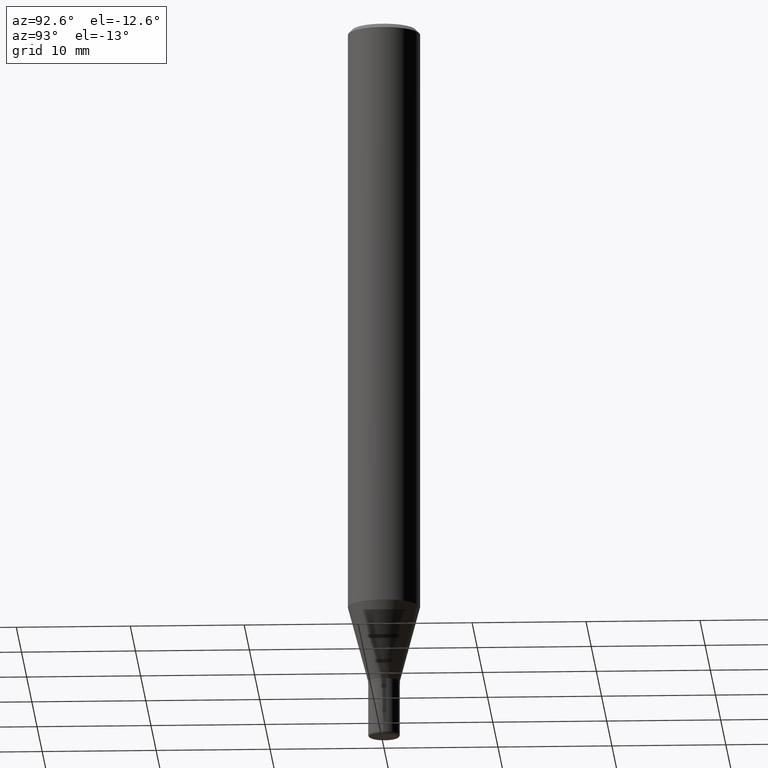
[diagram: clean part render]
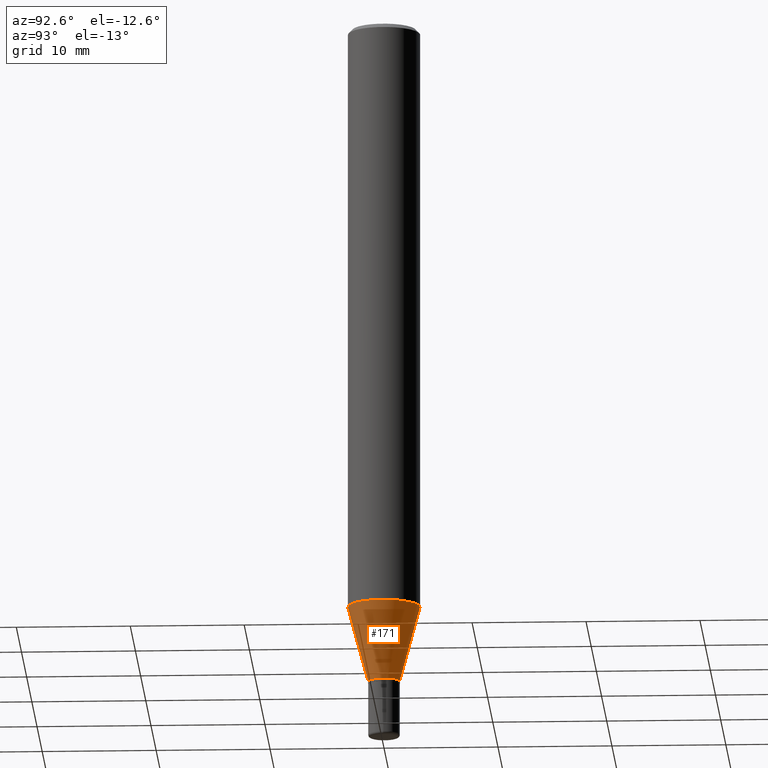
[diagram: same view with one face highlighted and labeled with its STEP entity id]
A machine part, auxiliary view. The second image highlights one B-rep face of the part: STEP entity #171.
In plain terms, the highlighted conical surface has half-angle 15 deg.
Its self-contained STEP definition (entity closure, byte-faithful):
#12 = CARTESIAN_POINT ( 'NONE',  ( -3.819680584693829247E-16, -0.05470000000000810325, -2.302000000000000046 ) ) ;
#15 = VERTEX_POINT ( 'NONE', #158 ) ;
#36 = EDGE_CURVE ( 'NONE', #205, #92, #509, .T. ) ;
#70 = DIRECTION ( 'NONE',  ( -2.445425972994914586E-29, 3.491542678409457073E-15, 1.000000000000000000 ) ) ;
#77 = CIRCLE ( 'NONE', #245, 0.05470000000000006801 ) ;
#80 = AXIS2_PLACEMENT_3D ( 'NONE', #228, #70, #108 ) ;
#87 = VECTOR ( 'NONE', #190, 39.37007874015748854 ) ;
#88 = EDGE_LOOP ( 'NONE', ( #397, #229, #491, #422 ) ) ;
#92 = VERTEX_POINT ( 'NONE', #380 ) ;
#108 = DIRECTION ( 'NONE',  ( -6.982962677686265922E-15, -1.000000000000000000, 4.370956789862821150E-15 ) ) ;
#132 = EDGE_CURVE ( 'NONE', #265, #15, #77, .T. ) ;
#138 = DIRECTION ( 'NONE',  ( -2.445425972994914586E-29, 3.491542678409457073E-15, 1.000000000000000000 ) ) ;
#158 = CARTESIAN_POINT ( 'NONE',  ( 6.384226480805032602E-16, 0.05469999999999203277, -2.302000000000000490 ) ) ;
#171 = ADVANCED_FACE ( 'NONE', ( #362 ), #173, .T. ) ;
#173 = CONICAL_SURFACE ( 'NONE', #277, 0.05470000000000006801, 0.2617993877991492968 ) ;
#175 = CARTESIAN_POINT ( 'NONE',  ( 5.629370589834293603E-29, -8.037531245698571084E-15, -2.302000000000000046 ) ) ;
#176 = LINE ( 'NONE', #327, #214 ) ;
#190 = DIRECTION ( 'NONE',  ( -1.807323732225323434E-15, -0.2588190451025172423, 0.9659258262890693114 ) ) ;
#205 = VERTEX_POINT ( 'NONE', #396 ) ;
#214 = VECTOR ( 'NONE', #293, 39.37007874015748854 ) ;
#215 = CARTESIAN_POINT ( 'NONE',  ( 5.629370589834293603E-29, -8.037531245698571084E-15, -2.302000000000000046 ) ) ;
#228 = CARTESIAN_POINT ( 'NONE',  ( 4.987780875225493801E-29, -7.121479034213441071E-15, -2.039636828227908261 ) ) ;
#229 = ORIENTED_EDGE ( 'NONE', *, *, #433, .T. ) ;
#245 = AXIS2_PLACEMENT_3D ( 'NONE', #215, #249, #367 ) ;
#249 = DIRECTION ( 'NONE',  ( -2.445425972994914586E-29, 3.491542678409457073E-15, 1.000000000000000000 ) ) ;
#265 = VERTEX_POINT ( 'NONE', #12 ) ;
#277 = AXIS2_PLACEMENT_3D ( 'NONE', #175, #138, #474 ) ;
#281 = EDGE_CURVE ( 'NONE', #265, #205, #298, .T. ) ;
#293 = DIRECTION ( 'NONE',  ( 1.839019923739593216E-15, 0.2588190451025239591, 0.9659258262890673130 ) ) ;
#298 = LINE ( 'NONE', #462, #87 ) ;
#327 = CARTESIAN_POINT ( 'NONE',  ( 3.886668764608315406E-16, 0.05469999999999203277, -2.302000000000000490 ) ) ;
#362 = FACE_OUTER_BOUND ( 'NONE', #88, .T. ) ;
#367 = DIRECTION ( 'NONE',  ( -6.982962677686265922E-15, -1.000000000000000000, 4.994237648380730566E-15 ) ) ;
#380 = CARTESIAN_POINT ( 'NONE',  ( 8.881784197001751278E-16, 0.1249999999999929085, -2.039636828227908705 ) ) ;
#396 = CARTESIAN_POINT ( 'NONE',  ( -8.728703347107332462E-16, -0.1250000000000070777, -2.039636828227907817 ) ) ;
#397 = ORIENTED_EDGE ( 'NONE', *, *, #132, .T. ) ;
#422 = ORIENTED_EDGE ( 'NONE', *, *, #281, .F. ) ;
#433 = EDGE_CURVE ( 'NONE', #15, #92, #176, .T. ) ;
#462 = CARTESIAN_POINT ( 'NONE',  ( -3.819680584693829247E-16, -0.05470000000000810325, -2.302000000000000046 ) ) ;
#474 = DIRECTION ( 'NONE',  ( -6.982962677686265922E-15, -1.000000000000000000, 4.994237648380730566E-15 ) ) ;
#491 = ORIENTED_EDGE ( 'NONE', *, *, #36, .F. ) ;
#509 = CIRCLE ( 'NONE', #80, 0.1250000000000000000 ) ;